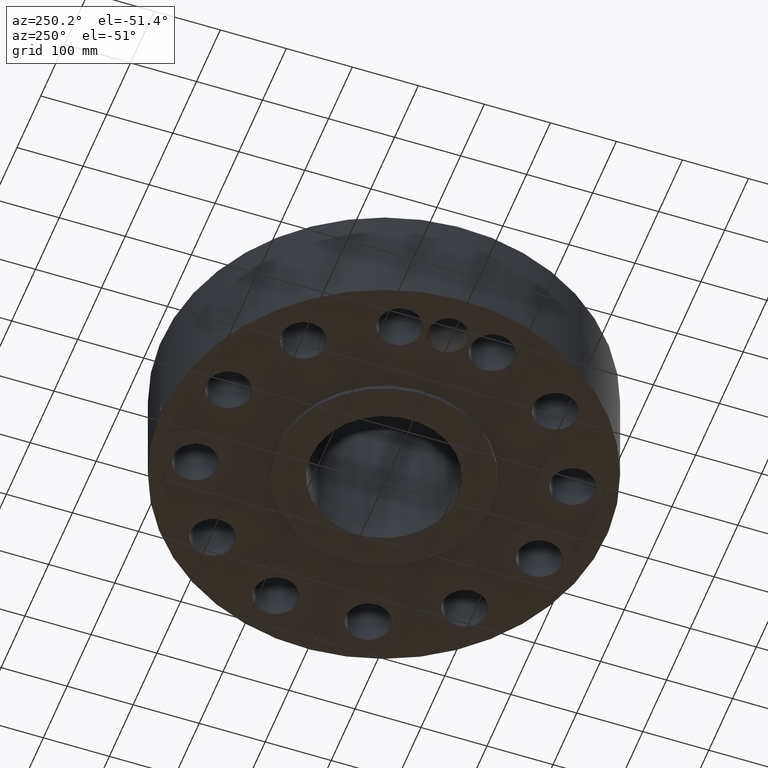
[diagram: clean part render]
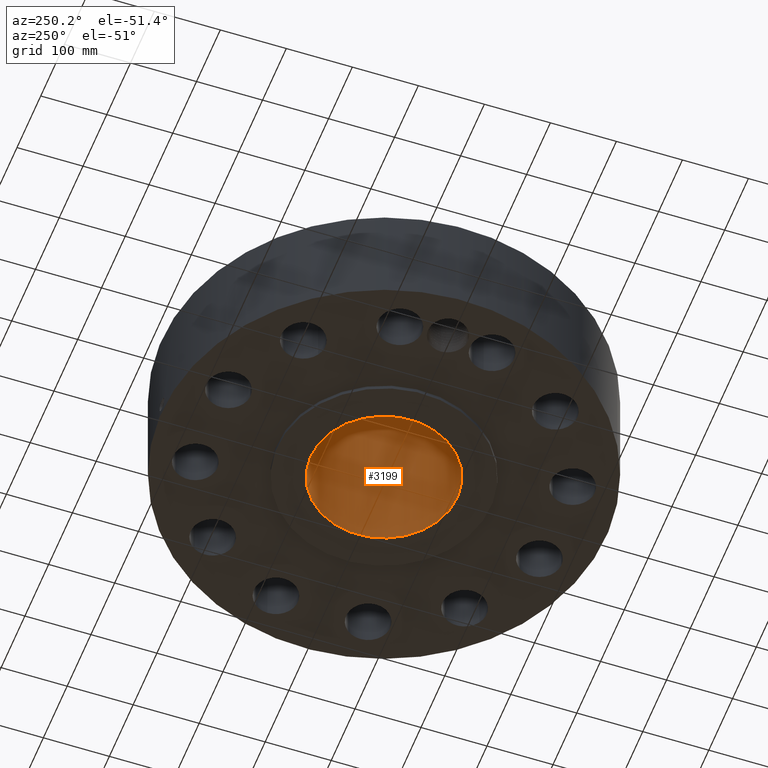
[diagram: same view with one face highlighted and labeled with its STEP entity id]
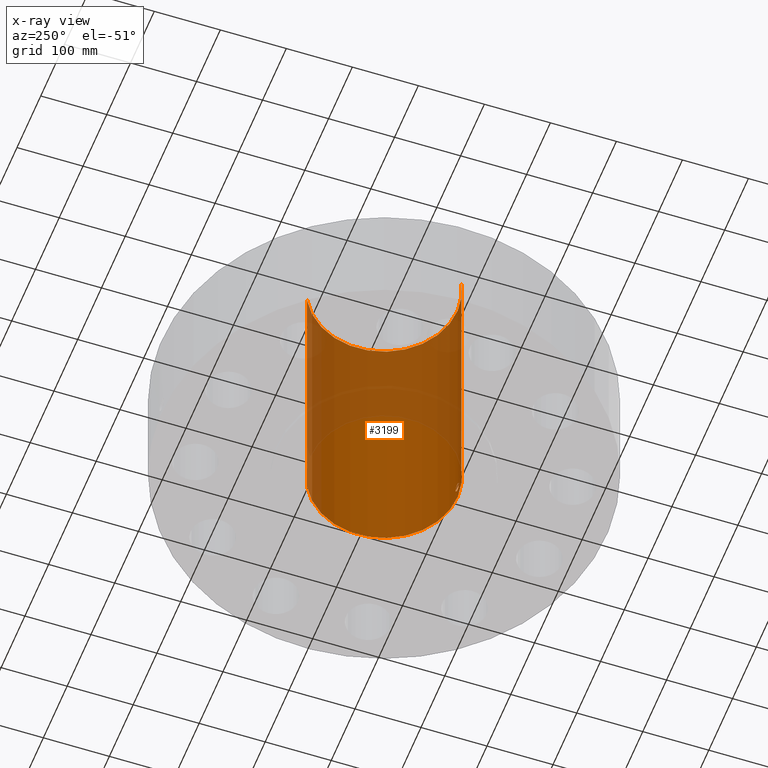
[diagram: x-ray of the same camera — body ghosted, the highlighted face saturated]
A machine part, auxiliary view. The second image highlights one B-rep face of the part: STEP entity #3199.
The next image is the same camera in x-ray: the body ghosted, the highlighted face saturated — about 48% of this face is hidden behind the body in this view.
In plain terms, the highlighted cylindrical surface (partial cylindrical patch) has radius 111.125 mm, axis along (0, 0, -1).
Its self-contained STEP definition (entity closure, byte-faithful):
#2357=AXIS2_PLACEMENT_3D('Circle Axis2P3D',#2355,#2356,$) ;
#3130=AXIS2_PLACEMENT_3D('Cylinder Axis2P3D',#3127,#3128,#3129) ;
#3134=AXIS2_PLACEMENT_3D('Circle Axis2P3D',#3132,#3133,$) ;
#2355=CARTESIAN_POINT('Axis2P3D Location',(0.,0.,0.)) ;
#2359=CARTESIAN_POINT('Vertex',(2.0974867314,3.83942370829,-2.01413688877E-014)) ;
#2361=CARTESIAN_POINT('Vertex',(-2.0974867314,-3.83942370829,-2.01413688877E-014)) ;
#3127=CARTESIAN_POINT('Axis2P3D Location',(0.,0.,8.37500000003)) ;
#3132=CARTESIAN_POINT('Axis2P3D Location',(0.,0.,16.7500000001)) ;
#3136=CARTESIAN_POINT('Vertex',(2.0974867314,3.83942370829,16.7500000001)) ;
#3138=CARTESIAN_POINT('Vertex',(-2.0974867314,-3.83942370829,16.7500000001)) ;
#3141=CARTESIAN_POINT('Line Origine',(2.0974867314,3.83942370829,8.37500000003)) ;
#3146=CARTESIAN_POINT('Line Origine',(-2.0974867314,-3.83942370829,8.37500000003)) ;
#3158=CARTESIAN_POINT('Control Point',(0.219395640473,-4.3694954575,0.820143615352)) ;
#3159=CARTESIAN_POINT('Control Point',(0.206921825531,-4.37012177709,0.797310450257)) ;
#3160=CARTESIAN_POINT('Control Point',(0.191478829921,-4.37085255723,0.776102242817)) ;
#3161=CARTESIAN_POINT('Control Point',(0.173346694106,-4.3716313096,0.757031420539)) ;
#3162=CARTESIAN_POINT('Control Point',(0.112147067862,-4.3738833864,0.707558297665)) ;
#3163=CARTESIAN_POINT('Control Point',(0.0350000945208,-4.37534654876,0.684030761425)) ;
#3164=CARTESIAN_POINT('Control Point',(-0.0195410405216,-4.37545612446,0.682387722914)) ;
#3165=CARTESIAN_POINT('Control Point',(-0.124120681168,-4.37384641052,0.707520149224)) ;
#3166=CARTESIAN_POINT('Control Point',(-0.203162153499,-4.37051308473,0.7804091671)) ;
#3167=CARTESIAN_POINT('Control Point',(-0.232145156524,-4.36887123256,0.826611315177)) ;
#3168=CARTESIAN_POINT('Control Point',(-0.255829519944,-4.36751853964,0.904772467508)) ;
#3169=CARTESIAN_POINT('Control Point',(-0.248302223499,-4.36794807788,0.984173351062)) ;
#3170=CARTESIAN_POINT('Control Point',(-0.242067984361,-4.36830910102,1.01076700451)) ;
#3171=CARTESIAN_POINT('Control Point',(-0.232327425783,-4.36884614287,1.03618491043)) ;
#3172=CARTESIAN_POINT('Control Point',(-0.219395640473,-4.3694954575,1.05985638466)) ;
#3173=CARTESIAN_POINT('Vertex',(0.219395640473,-4.3694954575,0.820143615352)) ;
#3175=CARTESIAN_POINT('Vertex',(-0.219395640473,-4.3694954575,1.05985638466)) ;
#3179=CARTESIAN_POINT('Control Point',(-0.219395640473,-4.3694954575,1.05985638466)) ;
#3180=CARTESIAN_POINT('Control Point',(-0.206921825534,-4.37012177709,1.08268954975)) ;
#3181=CARTESIAN_POINT('Control Point',(-0.191478829928,-4.37085255723,1.10389775718)) ;
#3182=CARTESIAN_POINT('Control Point',(-0.173346694095,-4.3716313096,1.12296857948)) ;
#3183=CARTESIAN_POINT('Control Point',(-0.112147067857,-4.3738833864,1.17244170234)) ;
#3184=CARTESIAN_POINT('Control Point',(-0.0350000945246,-4.37534654876,1.19596923858)) ;
#3185=CARTESIAN_POINT('Control Point',(0.0195410405299,-4.37545612446,1.19761227709)) ;
#3186=CARTESIAN_POINT('Control Point',(0.124120681177,-4.37384641052,1.17247985078)) ;
#3187=CARTESIAN_POINT('Control Point',(0.203162153509,-4.37051308473,1.0995908329)) ;
#3188=CARTESIAN_POINT('Control Point',(0.232145156521,-4.36887123256,1.05338868484)) ;
#3189=CARTESIAN_POINT('Control Point',(0.255829519939,-4.36751853964,0.975227532522)) ;
#3190=CARTESIAN_POINT('Control Point',(0.248302223503,-4.36794807788,0.895826648984)) ;
#3191=CARTESIAN_POINT('Control Point',(0.242067984347,-4.36830910102,0.869232995462)) ;
#3192=CARTESIAN_POINT('Control Point',(0.232327425774,-4.36884614287,0.843815089564)) ;
#3193=CARTESIAN_POINT('Control Point',(0.219395640473,-4.3694954575,0.820143615352)) ;
#2356=DIRECTION('Axis2P3D Direction',(0.,0.,-0.0393700787402)) ;
#3128=DIRECTION('Axis2P3D Direction',(0.,0.,-0.0393700787402)) ;
#3129=DIRECTION('Axis2P3D XDirection',(-0.0188750212049,-0.0345504945626,0.)) ;
#3133=DIRECTION('Axis2P3D Direction',(0.,0.,-0.0393700787402)) ;
#3142=DIRECTION('Vector Direction',(0.,0.,-0.0393700787402)) ;
#3147=DIRECTION('Vector Direction',(0.,0.,-0.0393700787402)) ;
#3143=VECTOR('Line Direction',#3142,0.0393700787402) ;
#3148=VECTOR('Line Direction',#3147,0.0393700787402) ;
#3152=ORIENTED_EDGE('',*,*,#3140,.F.) ;
#3153=ORIENTED_EDGE('',*,*,#3145,.T.) ;
#3154=ORIENTED_EDGE('',*,*,#2363,.T.) ;
#3155=ORIENTED_EDGE('',*,*,#3150,.F.) ;
#3196=ORIENTED_EDGE('',*,*,#3177,.F.) ;
#3197=ORIENTED_EDGE('',*,*,#3194,.F.) ;
#3198=FACE_BOUND('',#3195,.T.) ;
#3199=ADVANCED_FACE('PartBody',(#3156,#3198),#3131,.F.) ;
#3157=B_SPLINE_CURVE_WITH_KNOTS('',5,(#3158,#3159,#3160,#3161,#3162,#3163,#3164,#3165,#3166,#3167,#3168,#3169,#3170,#3171,#3172),.UNSPECIFIED.,.F.,.U.,(6,3,3,3,6),(0.,4.67436526329,14.0217474013,23.3717136081,28.2176960378),.UNSPECIFIED.) ;
#3178=B_SPLINE_CURVE_WITH_KNOTS('',5,(#3179,#3180,#3181,#3182,#3183,#3184,#3185,#3186,#3187,#3188,#3189,#3190,#3191,#3192,#3193),.UNSPECIFIED.,.F.,.U.,(6,3,3,3,6),(0.,4.67436526225,14.0217473998,23.3717136075,28.2176960336),.UNSPECIFIED.) ;
#2358=CIRCLE('generated circle',#2357,4.37500000002) ;
#3135=CIRCLE('generated circle',#3134,4.37500000002) ;
#3131=CYLINDRICAL_SURFACE('generated cylinder',#3130,4.37500000002) ;
#2363=EDGE_CURVE('',#2360,#2362,#2358,.T.) ;
#3140=EDGE_CURVE('',#3137,#3139,#3135,.T.) ;
#3145=EDGE_CURVE('',#3137,#2360,#3144,.T.) ;
#3150=EDGE_CURVE('',#3139,#2362,#3149,.T.) ;
#3177=EDGE_CURVE('',#3174,#3176,#3157,.T.) ;
#3194=EDGE_CURVE('',#3176,#3174,#3178,.T.) ;
#3151=EDGE_LOOP('',(#3152,#3153,#3154,#3155)) ;
#3195=EDGE_LOOP('',(#3196,#3197)) ;
#3156=FACE_OUTER_BOUND('',#3151,.T.) ;
#3144=LINE('Line',#3141,#3143) ;
#3149=LINE('Line',#3146,#3148) ;
#2360=VERTEX_POINT('',#2359) ;
#2362=VERTEX_POINT('',#2361) ;
#3137=VERTEX_POINT('',#3136) ;
#3139=VERTEX_POINT('',#3138) ;
#3174=VERTEX_POINT('',#3173) ;
#3176=VERTEX_POINT('',#3175) ;